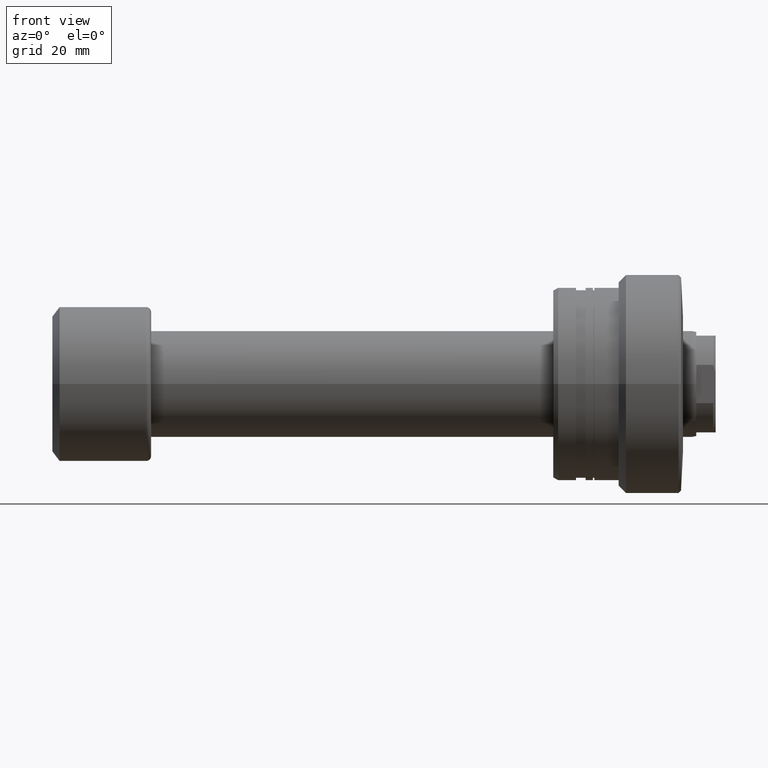
[diagram: clean part render]
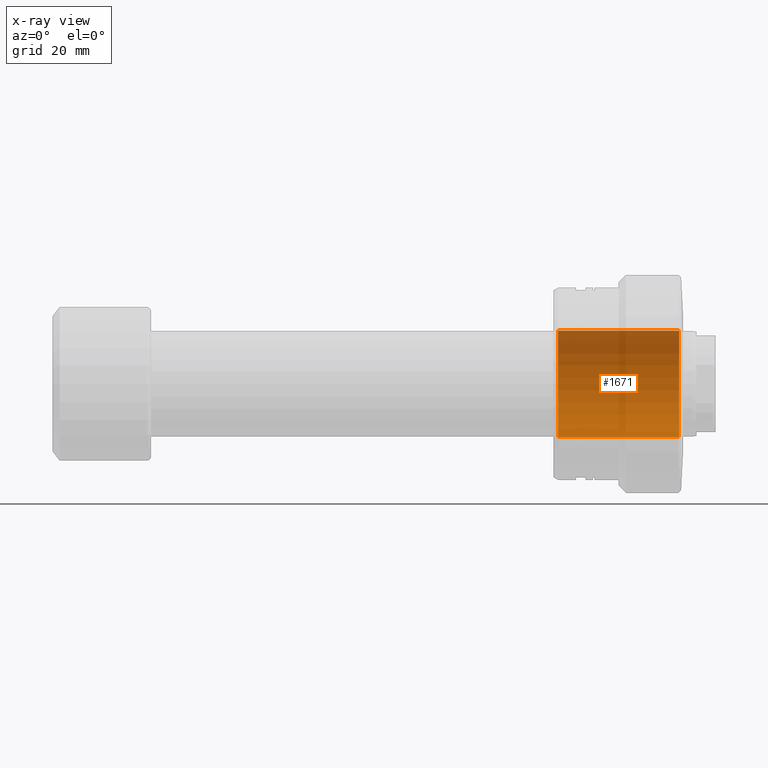
[diagram: x-ray — body ghosted, one internal face saturated and labeled with its STEP entity id]
A machine part, front view, then the same camera in x-ray: the body is ghosted and one INTERNAL B-rep face — a face not visible from any outside direction — is saturated and labeled: STEP entity #1671.
In plain terms, the highlighted cylindrical surface (partial cylindrical patch) has radius 11 mm, axis along (1, 0, 0).
Its self-contained STEP definition (entity closure, byte-faithful):
#74 = CARTESIAN_POINT ( 'NONE',  ( -26.49999999999999645, 0.000000000000000000, -11.00000000000000000 ) ) ;
#211 = CIRCLE ( 'NONE', #2059, 11.00000000000000000 ) ;
#214 = EDGE_CURVE ( 'NONE', #1628, #824, #580, .T. ) ;
#247 = ORIENTED_EDGE ( 'NONE', *, *, #214, .T. ) ;
#397 = VECTOR ( 'NONE', #691, 1000.000000000000000 ) ;
#430 = ORIENTED_EDGE ( 'NONE', *, *, #1576, .T. ) ;
#457 = DIRECTION ( 'NONE',  ( 0.000000000000000000, 0.000000000000000000, -1.000000000000000000 ) ) ;
#493 = LINE ( 'NONE', #1465, #397 ) ;
#514 = VERTEX_POINT ( 'NONE', #1508 ) ;
#537 = DIRECTION ( 'NONE',  ( 1.000000000000000000, -0.000000000000000000, -0.000000000000000000 ) ) ;
#580 = CIRCLE ( 'NONE', #1971, 11.00000000000000000 ) ;
#592 = DIRECTION ( 'NONE',  ( -1.000000000000000000, -0.000000000000000000, -0.000000000000000000 ) ) ;
#691 = DIRECTION ( 'NONE',  ( 1.000000000000000000, -0.000000000000000000, -0.000000000000000000 ) ) ;
#810 = LINE ( 'NONE', #1570, #1328 ) ;
#815 = CARTESIAN_POINT ( 'NONE',  ( -58.61269837220807233, 0.000000000000000000, 0.000000000000000000 ) ) ;
#824 = VERTEX_POINT ( 'NONE', #1982 ) ;
#826 = DIRECTION ( 'NONE',  ( 0.000000000000000000, 0.000000000000000000, -1.000000000000000000 ) ) ;
#976 = ORIENTED_EDGE ( 'NONE', *, *, #2389, .F. ) ;
#1156 = DIRECTION ( 'NONE',  ( 1.000000000000000000, 0.000000000000000000, 0.000000000000000000 ) ) ;
#1213 = FACE_OUTER_BOUND ( 'NONE', #1348, .T. ) ;
#1319 = EDGE_CURVE ( 'NONE', #1726, #1628, #810, .T. ) ;
#1328 = VECTOR ( 'NONE', #537, 1000.000000000000000 ) ;
#1348 = EDGE_LOOP ( 'NONE', ( #976, #430, #1528, #247 ) ) ;
#1465 = CARTESIAN_POINT ( 'NONE',  ( -58.61269837220807233, 1.347111479062088405E-15, 11.00000000000000000 ) ) ;
#1508 = CARTESIAN_POINT ( 'NONE',  ( -26.49999999999999645, 1.347111479062088405E-15, 11.00000000000000000 ) ) ;
#1528 = ORIENTED_EDGE ( 'NONE', *, *, #1319, .T. ) ;
#1570 = CARTESIAN_POINT ( 'NONE',  ( -58.61269837220807233, 0.000000000000000000, -11.00000000000000000 ) ) ;
#1576 = EDGE_CURVE ( 'NONE', #514, #1726, #211, .T. ) ;
#1628 = VERTEX_POINT ( 'NONE', #1966 ) ;
#1671 = ADVANCED_FACE ( 'NONE', ( #1213 ), #2309, .F. ) ;
#1726 = VERTEX_POINT ( 'NONE', #74 ) ;
#1966 = CARTESIAN_POINT ( 'NONE',  ( -1.500000000000000000, 0.000000000000000000, -11.00000000000000000 ) ) ;
#1971 = AXIS2_PLACEMENT_3D ( 'NONE', #2110, #1156, #457 ) ;
#1982 = CARTESIAN_POINT ( 'NONE',  ( -1.500000000000000000, 1.347111479062088405E-15, 11.00000000000000000 ) ) ;
#2059 = AXIS2_PLACEMENT_3D ( 'NONE', #2292, #592, #2254 ) ;
#2110 = CARTESIAN_POINT ( 'NONE',  ( -1.500000000000000000, 0.000000000000000000, 0.000000000000000000 ) ) ;
#2254 = DIRECTION ( 'NONE',  ( 0.000000000000000000, 0.000000000000000000, 1.000000000000000000 ) ) ;
#2292 = CARTESIAN_POINT ( 'NONE',  ( -26.49999999999999645, 0.000000000000000000, 0.000000000000000000 ) ) ;
#2301 = AXIS2_PLACEMENT_3D ( 'NONE', #815, #2359, #826 ) ;
#2309 = CYLINDRICAL_SURFACE ( 'NONE', #2301, 11.00000000000000000 ) ;
#2359 = DIRECTION ( 'NONE',  ( 1.000000000000000000, -0.000000000000000000, -0.000000000000000000 ) ) ;
#2389 = EDGE_CURVE ( 'NONE', #514, #824, #493, .T. ) ;